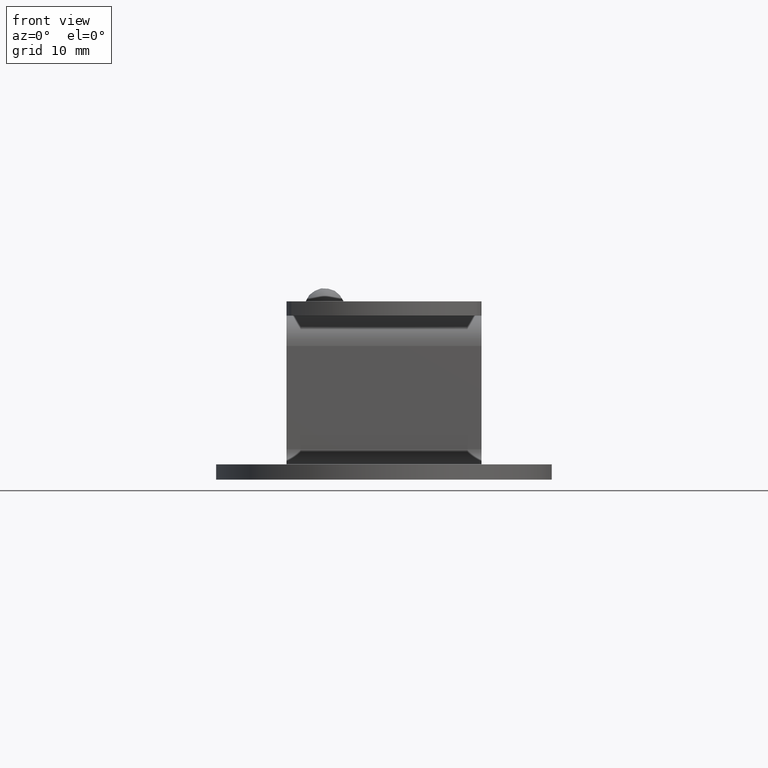
[diagram: clean part render]
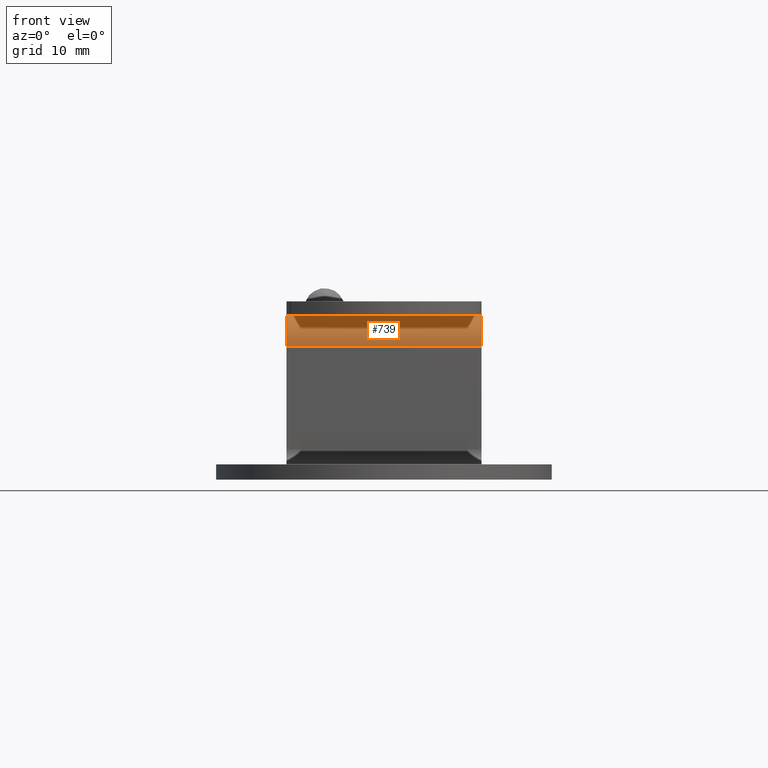
[diagram: same view with one face highlighted and labeled with its STEP entity id]
A machine part, front view. The second image highlights one B-rep face of the part: STEP entity #739.
In plain terms, the highlighted cylindrical surface (edge-blend (fillet) strip) has radius 3.2 mm, axis along (-1, 0, 0).
Its self-contained STEP definition (entity closure, byte-faithful):
#400=CARTESIAN_POINT('',(-7.473034844879960,17.691234150719989,17.250000000000000));
#401=VERTEX_POINT('',#400);
#408=CARTESIAN_POINT('',(13.026965155120047,17.691234150720000,17.250000000000000));
#409=VERTEX_POINT('',#408);
#410=CARTESIAN_POINT('',(13.026965155120047,17.691234150720000,17.250000000000000));
#411=DIRECTION('',(-1.0,0.0,0.0));
#412=VECTOR('',#411,20.500000000000007);
#413=LINE('',#410,#412);
#414=EDGE_CURVE('',#409,#401,#413,.T.);
#473=CARTESIAN_POINT('',(13.026965155120047,14.491234150719997,14.050000000000001));
#474=VERTEX_POINT('',#473);
#475=CARTESIAN_POINT('',(13.026965155120047,17.691234150719996,14.050000000000001));
#476=DIRECTION('',(-1.0,0.0,0.0));
#477=DIRECTION('',(0.0,-1.0,0.0));
#478=AXIS2_PLACEMENT_3D('',#475,#476,#477);
#479=CIRCLE('',#478,3.200000000000001);
#480=EDGE_CURVE('',#474,#409,#479,.T.);
#687=CARTESIAN_POINT('',(-7.473034844879960,14.491234150719997,14.050000000000001));
#688=VERTEX_POINT('',#687);
#695=CARTESIAN_POINT('',(-7.473034844879960,17.691234150719996,14.050000000000001));
#696=DIRECTION('',(-1.0,0.0,0.0));
#697=DIRECTION('',(0.0,-1.0,0.0));
#698=AXIS2_PLACEMENT_3D('',#695,#696,#697);
#699=CIRCLE('',#698,3.200000000000001);
#700=EDGE_CURVE('',#688,#401,#699,.T.);
#723=CARTESIAN_POINT('',(2.776965155120044,17.691234150719996,14.050000000000001));
#724=DIRECTION('',(-1.0,0.0,0.0));
#725=DIRECTION('',(0.0,-1.0,0.0));
#726=AXIS2_PLACEMENT_3D('',#723,#724,#725);
#727=CYLINDRICAL_SURFACE('',#726,3.200000000000001);
#728=ORIENTED_EDGE('',*,*,#414,.T.);
#729=ORIENTED_EDGE('',*,*,#700,.F.);
#730=CARTESIAN_POINT('',(13.026965155120047,14.491234150719997,14.050000000000001));
#731=DIRECTION('',(-1.0,0.0,0.0));
#732=VECTOR('',#731,20.500000000000007);
#733=LINE('',#730,#732);
#734=EDGE_CURVE('',#474,#688,#733,.T.);
#735=ORIENTED_EDGE('',*,*,#734,.F.);
#736=ORIENTED_EDGE('',*,*,#480,.T.);
#737=EDGE_LOOP('',(#728,#729,#735,#736));
#738=FACE_OUTER_BOUND('',#737,.T.);
#739=ADVANCED_FACE('',(#738),#727,.T.);